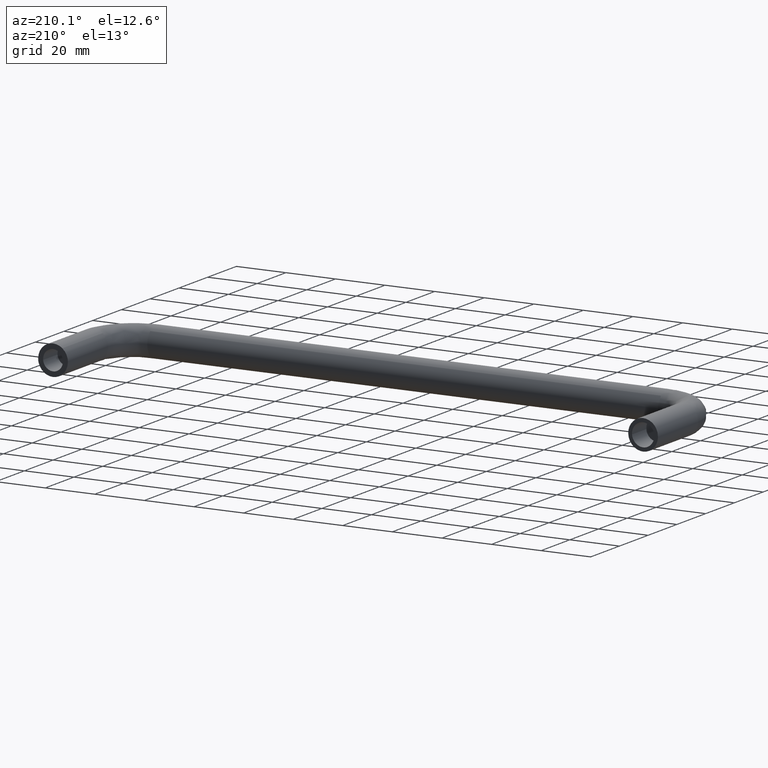
[diagram: clean part render]
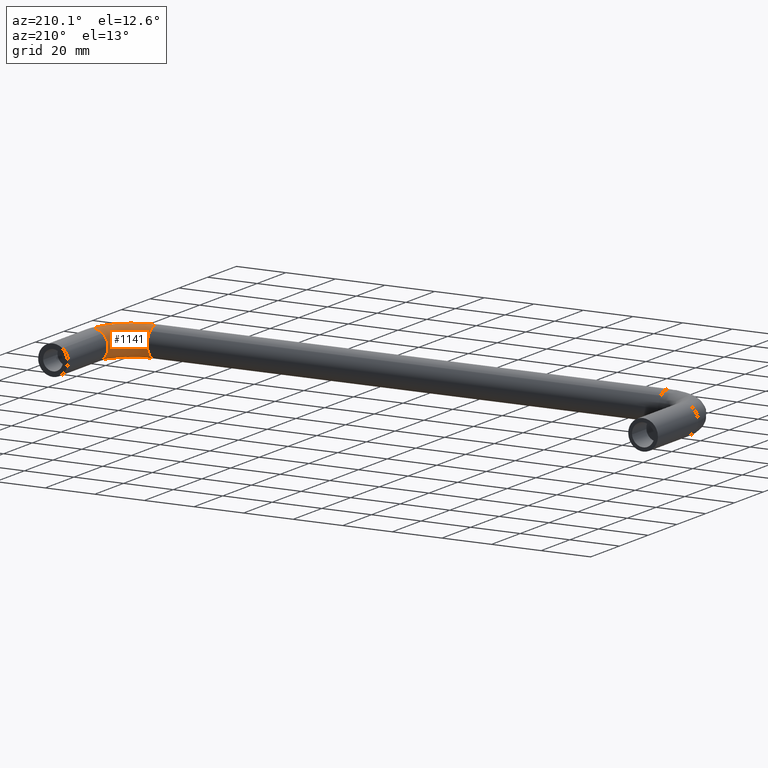
[diagram: same view with one face highlighted and labeled with its STEP entity id]
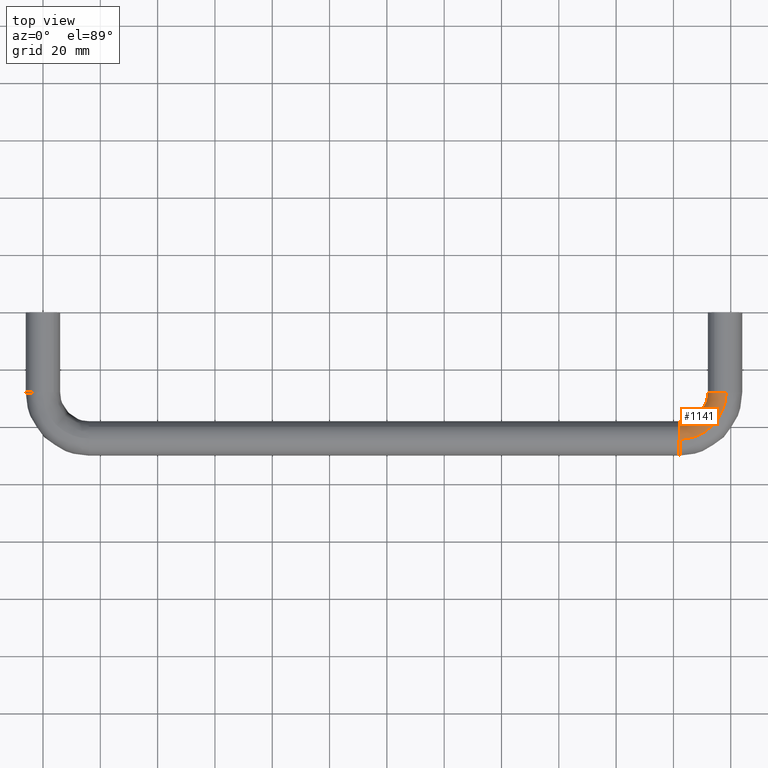
[diagram: same view with one face highlighted and labeled with its STEP entity id]
A machine part, auxiliary view. The second image highlights one B-rep face of the part: STEP entity #1141.
A second angle (top view) of the same face is appended — the face is thin or edge-on in the first view.
In plain terms, the highlighted face is a freeform B-spline surface patch.
Its self-contained STEP definition (entity closure, byte-faithful):
#426=CARTESIAN_POINT('',(237.924603760736890,-28.000000000244398,-5.999526265223361));
#427=VERTEX_POINT('',#426);
#445=CARTESIAN_POINT('',(232.0,-28.0,0.0));
#446=VERTEX_POINT('',#445);
#447=CARTESIAN_POINT('',(232.0,-28.0,0.0));
#448=CARTESIAN_POINT('',(232.000000000000030,-28.0,-5.925071579517050));
#449=CARTESIAN_POINT('',(237.924603760736970,-28.000000000244402,-5.999526265223361));
#457=(BOUNDED_CURVE()B_SPLINE_CURVE(2,(#447,#448,#449),.UNSPECIFIED.,.F.,.U.)B_SPLINE_CURVE_WITH_KNOTS((3,3),(0.0,0.247784295923900),.UNSPECIFIED.)CURVE()GEOMETRIC_REPRESENTATION_ITEM()RATIONAL_B_SPLINE_CURVE((1.0,0.709702639981696,0.994854295649010))REPRESENTATION_ITEM(''));
#458=EDGE_CURVE('',#446,#427,#457,.T.);
#460=CARTESIAN_POINT('',(234.264912180171710,-28.0,4.695648941112456));
#461=VERTEX_POINT('',#460);
#462=CARTESIAN_POINT('',(234.264912180171710,-28.000000000000007,4.695648941112457));
#463=CARTESIAN_POINT('',(231.999999999999890,-27.999999999999989,2.894056444901409));
#464=CARTESIAN_POINT('',(232.0,-28.0,0.0));
#472=(BOUNDED_CURVE()B_SPLINE_CURVE(2,(#462,#463,#464),.UNSPECIFIED.,.F.,.U.)B_SPLINE_CURVE_WITH_KNOTS((3,3),(0.857863877391610,1.0),.UNSPECIFIED.)CURVE()GEOMETRIC_REPRESENTATION_ITEM()RATIONAL_B_SPLINE_CURVE((0.856305618644018,0.833477174158260,1.0))REPRESENTATION_ITEM(''));
#473=EDGE_CURVE('',#461,#446,#472,.T.);
#587=CARTESIAN_POINT('',(238.418400041081100,-27.999999988341919,5.985394005879900));
#588=VERTEX_POINT('',#587);
#589=CARTESIAN_POINT('',(238.418400041081160,-27.999999988341923,5.985394005879900));
#590=CARTESIAN_POINT('',(238.209455228823490,-28.000000000000004,6.0));
#591=CARTESIAN_POINT('',(238.0,-28.0,6.0));
#592=CARTESIAN_POINT('',(235.904706199467060,-28.000000000000007,6.0));
#593=CARTESIAN_POINT('',(234.264912180171760,-28.000000000000004,4.695648941112456));
#601=(BOUNDED_CURVE()B_SPLINE_CURVE(2,(#589,#590,#591,#592,#593),.UNSPECIFIED.,.F.,.U.)B_SPLINE_CURVE_WITH_KNOTS((3,2,3),(0.737833655983836,0.750000000000000,0.857863877391610),.UNSPECIFIED.)CURVE()GEOMETRIC_REPRESENTATION_ITEM()RATIONAL_B_SPLINE_CURVE((0.972879811768446,0.985746241359656,1.0,0.873629607028287,0.856305618644017))REPRESENTATION_ITEM(''));
#602=EDGE_CURVE('',#588,#461,#601,.T.);
#642=CARTESIAN_POINT('',(222.000000001557710,-43.924603758642313,-5.999526265197038));
#643=VERTEX_POINT('',#642);
#715=CARTESIAN_POINT('',(222.0,-40.024279710705088,4.493734324733588));
#716=VERTEX_POINT('',#715);
#722=CARTESIAN_POINT('',(222.0,-38.0,0.0));
#723=VERTEX_POINT('',#722);
#724=CARTESIAN_POINT('',(222.0,-40.024279710705088,4.493734324733588));
#725=CARTESIAN_POINT('',(222.0,-38.000000000000007,2.702802922144023));
#726=CARTESIAN_POINT('',(222.0,-38.0,0.0));
#734=(BOUNDED_CURVE()B_SPLINE_CURVE(2,(#724,#725,#726),.UNSPECIFIED.,.F.,.U.)B_SPLINE_CURVE_WITH_KNOTS((3,3),(0.865779888059604,1.0),.UNSPECIFIED.)CURVE()GEOMETRIC_REPRESENTATION_ITEM()RATIONAL_B_SPLINE_CURVE((0.854350158224968,0.842751357537102,1.0))REPRESENTATION_ITEM(''));
#735=EDGE_CURVE('',#716,#723,#734,.T.);
#737=CARTESIAN_POINT('',(222.0,-38.0,0.0));
#738=CARTESIAN_POINT('',(221.999999999999940,-37.999999999999993,-5.925071575379492));
#739=CARTESIAN_POINT('',(222.000000001557710,-43.924603758642306,-5.999526265197038));
#747=(BOUNDED_CURVE()B_SPLINE_CURVE(2,(#737,#738,#739),.UNSPECIFIED.,.F.,.U.)B_SPLINE_CURVE_WITH_KNOTS((3,3),(0.0,0.247784295801099),.UNSPECIFIED.)CURVE()GEOMETRIC_REPRESENTATION_ITEM()RATIONAL_B_SPLINE_CURVE((1.0,0.709702640125566,0.994854295366371))REPRESENTATION_ITEM(''));
#748=EDGE_CURVE('',#723,#643,#747,.T.);
#786=CARTESIAN_POINT('',(221.999999978992090,-44.418400041564851,5.985394005846084));
#787=VERTEX_POINT('',#786);
#801=CARTESIAN_POINT('',(221.999999978992150,-44.418400041564858,5.985394005846084));
#802=CARTESIAN_POINT('',(222.000000000000060,-44.209455229309008,6.0));
#803=CARTESIAN_POINT('',(222.0,-44.0,6.0));
#804=CARTESIAN_POINT('',(221.999999999999970,-41.726803347827378,6.0));
#805=CARTESIAN_POINT('',(222.000000000000030,-40.024279710705088,4.493734324733588));
#813=(BOUNDED_CURVE()B_SPLINE_CURVE(2,(#801,#802,#803,#804,#805),.UNSPECIFIED.,.F.,.U.)B_SPLINE_CURVE_WITH_KNOTS((3,2,3),(0.737833655956036,0.750000000000000,0.865779888059604),.UNSPECIFIED.)CURVE()GEOMETRIC_REPRESENTATION_ITEM()RATIONAL_B_SPLINE_CURVE((0.972879811709646,0.985746241327086,1.0,0.864355423649445,0.854350158224968))REPRESENTATION_ITEM(''));
#814=EDGE_CURVE('',#787,#716,#813,.T.);
#1078=CARTESIAN_POINT('',(220.858312176858730,-44.378656248895858,5.985394066133805));
#1079=CARTESIAN_POINT('',(239.691435207828990,-45.691434715543750,5.985394066133804));
#1080=CARTESIAN_POINT('',(238.378656217127030,-26.858311721103281,5.985394066133805));
#1081=CARTESIAN_POINT('',(220.870223828893500,-44.207771660237903,5.997368459328779));
#1082=CARTESIAN_POINT('',(239.506853909930040,-45.506853422781191,5.997368459328780));
#1083=CARTESIAN_POINT('',(238.207771628800630,-26.870223377893055,5.997368459328781));
#1084=CARTESIAN_POINT('',(220.882163605699300,-44.036483593546343,5.999526265222895));
#1085=CARTESIAN_POINT('',(239.321836794502840,-45.321836312502107,5.999526265222896));
#1086=CARTESIAN_POINT('',(238.036483562441190,-26.882163159465186,5.999526265222896));
#1087=CARTESIAN_POINT('',(221.299353248056830,-38.051479983738822,6.074922504523010));
#1088=CARTESIAN_POINT('',(232.857124306952390,-38.857124004840045,6.074922504523014));
#1089=CARTESIAN_POINT('',(232.051479964242530,-27.299352968362516,6.074922504523012));
#1090=CARTESIAN_POINT('',(221.304596083693890,-37.976266251115838,0.075396239300117));
#1091=CARTESIAN_POINT('',(232.775882057453030,-38.775881757601248,0.075396239300117));
#1092=CARTESIAN_POINT('',(231.976266231765350,-27.304595806092468,0.075396239300117));
#1093=CARTESIAN_POINT('',(221.309838919330930,-37.901052518492840,-5.924130025922777));
#1094=CARTESIAN_POINT('',(232.694639807953510,-38.694639510362428,-5.924130025922778));
#1095=CARTESIAN_POINT('',(231.901052499288340,-27.309838643822427,-5.924130025922779));
#1096=CARTESIAN_POINT('',(220.892649276973490,-43.886056128300361,-5.999526265222895));
#1097=CARTESIAN_POINT('',(239.159352295503910,-45.159351818024525,-5.999526265222896));
#1098=CARTESIAN_POINT('',(237.886056097487000,-26.892648834925104,-5.999526265222896));
#1106=(BOUNDED_SURFACE()B_SPLINE_SURFACE(2,2,((#1078,#1081,#1084,#1087,#1090,#1093,#1096),(#1079,#1082,#1085,#1088,#1091,#1094,#1097),(#1080,#1083,#1086,#1089,#1092,#1095,#1098)),.UNSPECIFIED.,.F.,.F.,.U.)B_SPLINE_SURFACE_WITH_KNOTS((3,3),(3,2,2,3),(0.0,29.920462421271090),(0.0,0.397644640654331,10.338770137608661,20.279895634562990),.UNSPECIFIED.)GEOMETRIC_REPRESENTATION_ITEM()RATIONAL_B_SPLINE_SURFACE(((0.895729732449210,0.905606490046838,0.916342095240933,0.647951709431553,0.916342095240933,0.647951709431553,0.916342095240933),(0.587800221482116,0.594281596491894,0.601326568744382,0.425202094466791,0.601326568744382,0.425202094466791,0.601326568744382),(0.895729743804760,0.905606501527600,0.916342106857795,0.647951717645915,0.916342106857795,0.647951717645915,0.916342106857795)))REPRESENTATION_ITEM('')SURFACE());
#1107=ORIENTED_EDGE('',*,*,#602,.T.);
#1108=ORIENTED_EDGE('',*,*,#473,.T.);
#1109=ORIENTED_EDGE('',*,*,#458,.T.);
#1110=CARTESIAN_POINT('',(222.000000001557650,-43.924603758642291,-5.999526265197038));
#1111=CARTESIAN_POINT('',(237.924603760211170,-43.924603757584578,-5.999526265222896));
#1112=CARTESIAN_POINT('',(237.924603760736890,-28.000000000244398,-5.999526265223361));
#1120=(BOUNDED_CURVE()B_SPLINE_CURVE(2,(#1110,#1111,#1112),.UNSPECIFIED.,.F.,.U.)B_SPLINE_CURVE_WITH_KNOTS((3,3),(-1.734750791455125,-0.265249208373494),.UNSPECIFIED.)CURVE()GEOMETRIC_REPRESENTATION_ITEM()RATIONAL_B_SPLINE_CURVE((0.889029723504402,0.628638946258975,0.889029723565138))REPRESENTATION_ITEM(''));
#1121=EDGE_CURVE('',#643,#427,#1120,.T.);
#1122=ORIENTED_EDGE('',*,*,#1121,.F.);
#1123=ORIENTED_EDGE('',*,*,#748,.F.);
#1124=ORIENTED_EDGE('',*,*,#735,.F.);
#1125=ORIENTED_EDGE('',*,*,#814,.F.);
#1126=CARTESIAN_POINT('',(221.999999978992090,-44.418400041564844,5.985394005846084));
#1127=CARTESIAN_POINT('',(238.418399532768860,-44.418399551468433,5.985394043042593));
#1128=CARTESIAN_POINT('',(238.418400041081130,-27.999999988341926,5.985394005879900));
#1136=(BOUNDED_CURVE()B_SPLINE_CURVE(2,(#1126,#1127,#1128),.UNSPECIFIED.,.F.,.U.)B_SPLINE_CURVE_WITH_KNOTS((3,3),(-1.734750794317514,-0.265249206865955),.UNSPECIFIED.)CURVE()GEOMETRIC_REPRESENTATION_ITEM()RATIONAL_B_SPLINE_CURVE((0.869031712796434,0.614498215816966,0.869031712386455))REPRESENTATION_ITEM(''));
#1137=EDGE_CURVE('',#787,#588,#1136,.T.);
#1138=ORIENTED_EDGE('',*,*,#1137,.T.);
#1139=EDGE_LOOP('',(#1107,#1108,#1109,#1122,#1123,#1124,#1125,#1138));
#1140=FACE_OUTER_BOUND('',#1139,.T.);
#1141=ADVANCED_FACE('',(#1140),#1106,.T.);